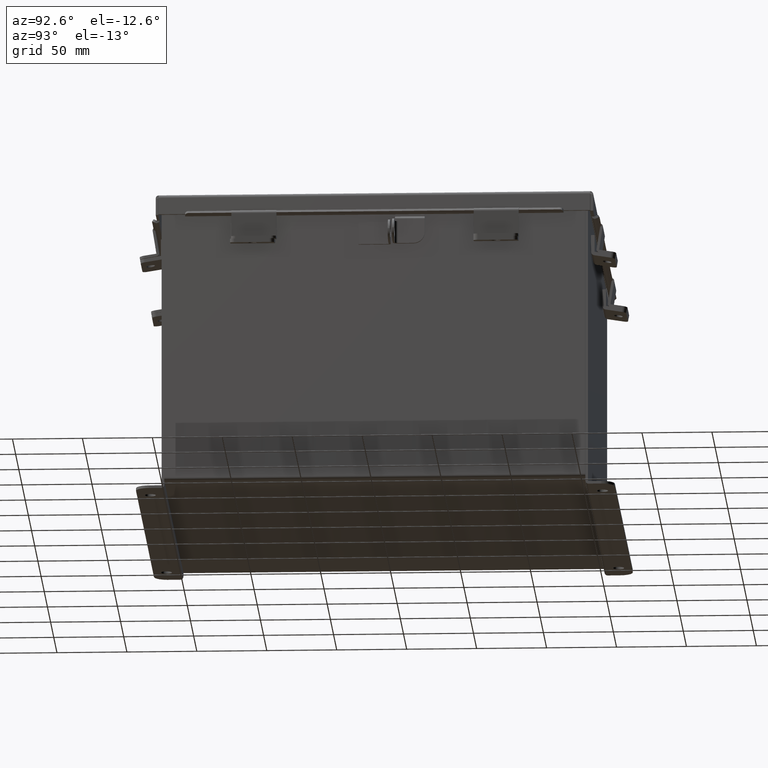
[diagram: clean part render]
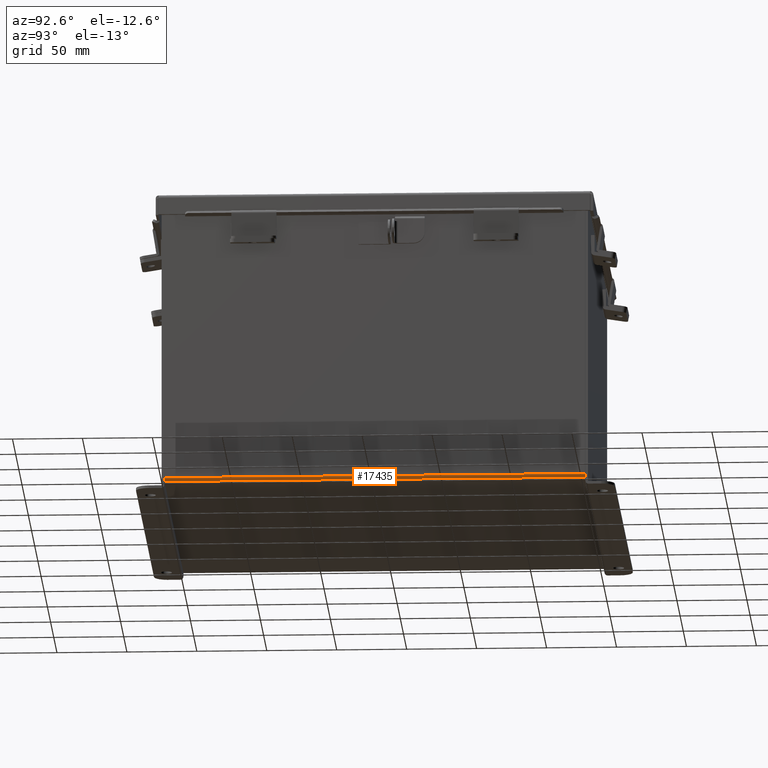
[diagram: same view with one face highlighted and labeled with its STEP entity id]
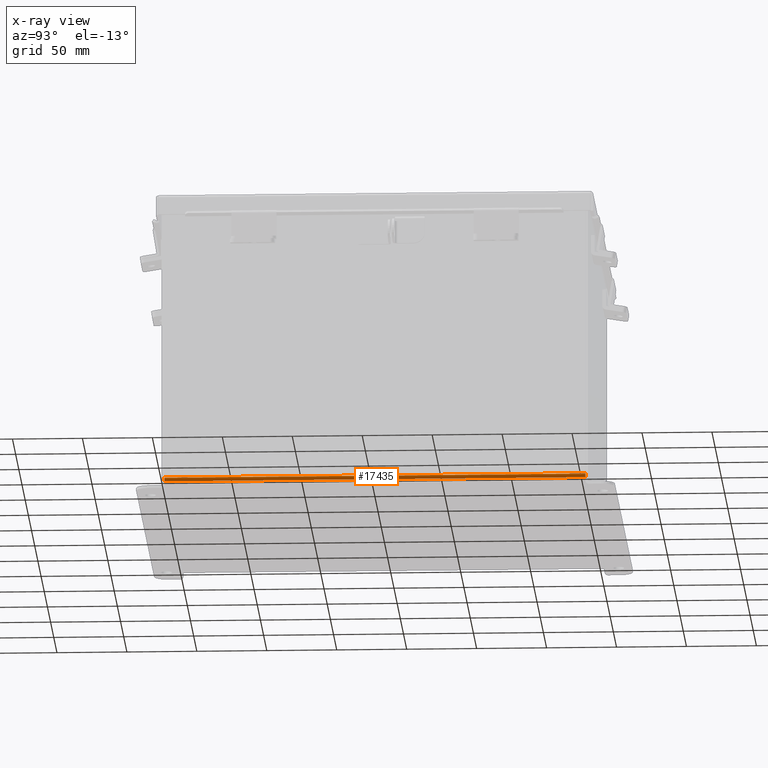
[diagram: x-ray of the same camera — body ghosted, the highlighted face saturated]
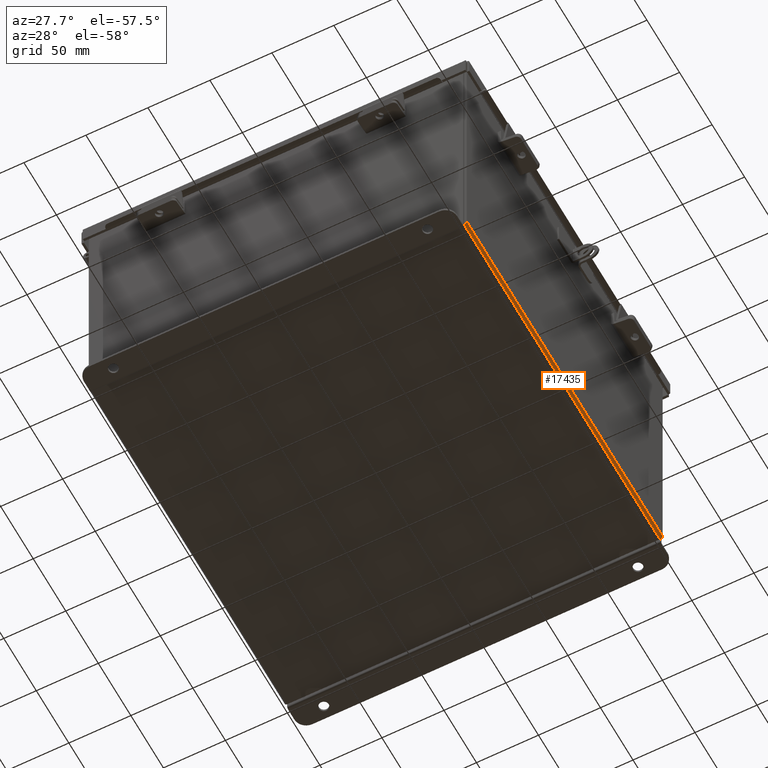
[diagram: same view with one face highlighted and labeled with its STEP entity id]
A machine part, auxiliary view. The second image highlights one B-rep face of the part: STEP entity #17435.
The next image is the same camera in x-ray: the body ghosted, the highlighted face saturated — about 0% of this face is hidden behind the body in this view.
A second angle (auxiliary view) of the same face is appended — the face is thin or edge-on in the first view.
In plain terms, the highlighted cylindrical surface (edge-blend (fillet) strip) has radius 2.2276 mm, axis along (0, 1, 0).
Its self-contained STEP definition (entity closure, byte-faithful):
#257 = CARTESIAN_POINT ( 'NONE',  ( 6.000000000000002700, 5.925299999999998200, 0.01299999999999984700 ) ) ;
#281 = CARTESIAN_POINT ( 'NONE',  ( 5.912300000000002800, 5.925299999999997300, -0.07469999999999994700 ) ) ;
#450 = DIRECTION ( 'NONE',  ( 0.0000000000000000000, 1.000000000000000000, 0.0000000000000000000 ) ) ;
#510 = LINE ( 'NONE', #14644, #14489 ) ;
#797 = CARTESIAN_POINT ( 'NONE',  ( 5.912300000000002800, -5.925300000000000000, 0.01300000000000015200 ) ) ;
#1806 = CARTESIAN_POINT ( 'NONE',  ( 5.912300000000002800, 5.925300000000000000, 0.01300000000000015200 ) ) ;
#2141 = DIRECTION ( 'NONE',  ( 0.0000000000000000000, 0.0000000000000000000, 1.000000000000000000 ) ) ;
#2158 = AXIS2_PLACEMENT_3D ( 'NONE', #12045, #3951, #13389 ) ;
#2839 = EDGE_LOOP ( 'NONE', ( #10621, #5954, #14172, #7715 ) ) ;
#3165 = DIRECTION ( 'NONE',  ( 1.000000000000000000, 0.0000000000000000000, -3.480030137311043200E-015 ) ) ;
#3784 = AXIS2_PLACEMENT_3D ( 'NONE', #1806, #450, #3165 ) ;
#3951 = DIRECTION ( 'NONE',  ( 0.0000000000000000000, 1.000000000000000000, 0.0000000000000000000 ) ) ;
#5047 = CIRCLE ( 'NONE', #2158, 0.08770000000000009700 ) ;
#5954 = ORIENTED_EDGE ( 'NONE', *, *, #15674, .F. ) ;
#6039 = CYLINDRICAL_SURFACE ( 'NONE', #3784, 0.08770000000000026400 ) ;
#6873 = VERTEX_POINT ( 'NONE', #11109 ) ;
#7698 = CIRCLE ( 'NONE', #11473, 0.08770000000000009700 ) ;
#7715 = ORIENTED_EDGE ( 'NONE', *, *, #8979, .F. ) ;
#8545 = EDGE_CURVE ( 'NONE', #12551, #17033, #510, .T. ) ;
#8726 = VERTEX_POINT ( 'NONE', #257 ) ;
#8979 = EDGE_CURVE ( 'NONE', #17033, #6873, #7698, .T. ) ;
#10257 = DIRECTION ( 'NONE',  ( -0.0000000000000000000, -1.000000000000000000, -0.0000000000000000000 ) ) ;
#10621 = ORIENTED_EDGE ( 'NONE', *, *, #8545, .F. ) ;
#10744 = DIRECTION ( 'NONE',  ( -0.0000000000000000000, -1.000000000000000000, -0.0000000000000000000 ) ) ;
#11109 = CARTESIAN_POINT ( 'NONE',  ( 6.000000000000002700, -5.925300000000000000, 0.01299999999999984700 ) ) ;
#11473 = AXIS2_PLACEMENT_3D ( 'NONE', #797, #10257, #2141 ) ;
#12045 = CARTESIAN_POINT ( 'NONE',  ( 5.912300000000002800, 5.925299999999997300, 0.01300000000000015200 ) ) ;
#12551 = VERTEX_POINT ( 'NONE', #281 ) ;
#13389 = DIRECTION ( 'NONE',  ( 0.0000000000000000000, 0.0000000000000000000, 1.000000000000000000 ) ) ;
#14172 = ORIENTED_EDGE ( 'NONE', *, *, #15721, .T. ) ;
#14489 = VECTOR ( 'NONE', #16013, 39.37007874015748100 ) ;
#14644 = CARTESIAN_POINT ( 'NONE',  ( 5.912300000000002800, 5.925300000000000000, -0.07469999999999994700 ) ) ;
#14984 = VECTOR ( 'NONE', #10744, 39.37007874015748100 ) ;
#15411 = LINE ( 'NONE', #16120, #14984 ) ;
#15674 = EDGE_CURVE ( 'NONE', #8726, #12551, #5047, .T. ) ;
#15721 = EDGE_CURVE ( 'NONE', #8726, #6873, #15411, .T. ) ;
#16013 = DIRECTION ( 'NONE',  ( -0.0000000000000000000, -1.000000000000000000, -0.0000000000000000000 ) ) ;
#16038 = CARTESIAN_POINT ( 'NONE',  ( 5.912300000000002800, -5.925300000000000000, -0.07470000000000000300 ) ) ;
#16120 = CARTESIAN_POINT ( 'NONE',  ( 6.000000000000002700, -5.925300000000000000, 0.01299999999999984700 ) ) ;
#17033 = VERTEX_POINT ( 'NONE', #16038 ) ;
#17269 = FACE_OUTER_BOUND ( 'NONE', #2839, .T. ) ;
#17435 = ADVANCED_FACE ( 'NONE', ( #17269 ), #6039, .T. ) ;